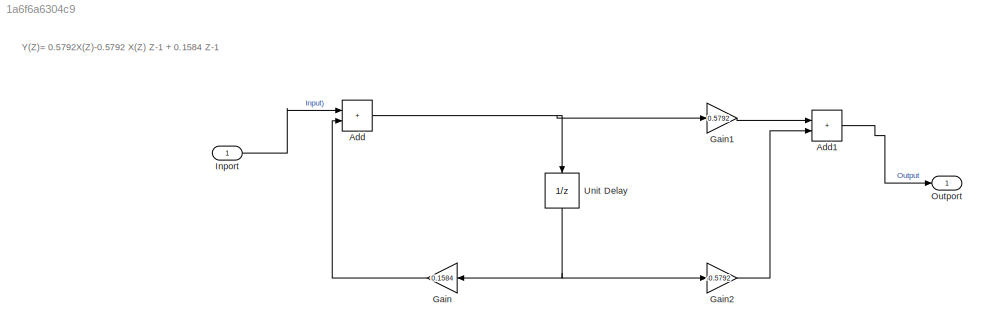
MODEL slx_1a6f6a6304c9
KIND model
CONFIG AbsTol = auto
CONFIG EnableMultiTasking = off
CONFIG FixedStep = auto
CONFIG MaxStep = auto
CONFIG MinStep = auto
CONFIG RelTol = 1e-3
CONFIG SampleTimeConstraint = Unconstrained
CONFIG SolverName = VariableStepAuto
CONFIG StartTime = 0.0
CONFIG StopTime = 1050
BLOCK [Sum] Add
  IconShape = rectangular
  Ports = [2, 1]
BLOCK [Sum] Add1
  IconShape = rectangular
  Ports = [2, 1]
BLOCK [Gain] Gain
  Gain = 0.1584
  NameLocation = top
BLOCK [Gain] Gain1
  Gain = 0.5792
BLOCK [Gain] Gain2
  Gain = -0.5792
BLOCK [Inport] Inport
BLOCK [Outport] Outport
BLOCK [UnitDelay] Unit Delay
  HasFrameUpgradeWarning = on
  NameLocation = left
  SampleTime = -1
ANNOTATION (root): Y(Z)= 0.5792X(Z)-0.5792 X(Z) Z-1 + 0.1584 Z-1
LINE Add1:1 -> Outport:1
NET Add:1 -> Gain1:1, Unit Delay:1
LINE Gain1:1 -> Add1:1
LINE Gain2:1 -> Add1:2
LINE Gain:1 -> Add:2
LINE Inport:1 -> Add:1
NET Unit Delay:1 -> Gain2:1, Gain:1
note: NET lines group one-source signal fan-out (src -> all destinations, sorted); 1:1 wires keep LINE
